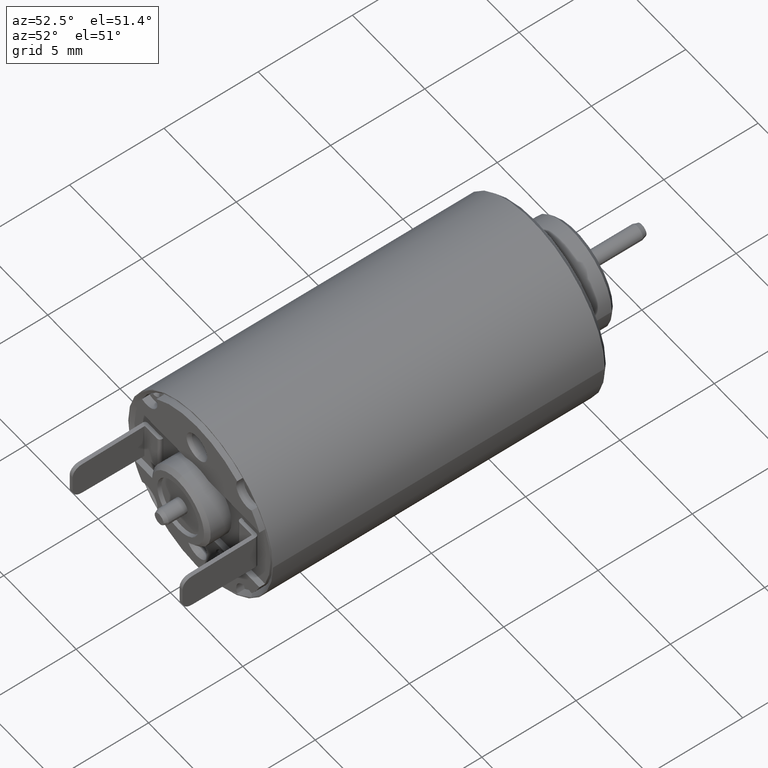
[diagram: clean part render]
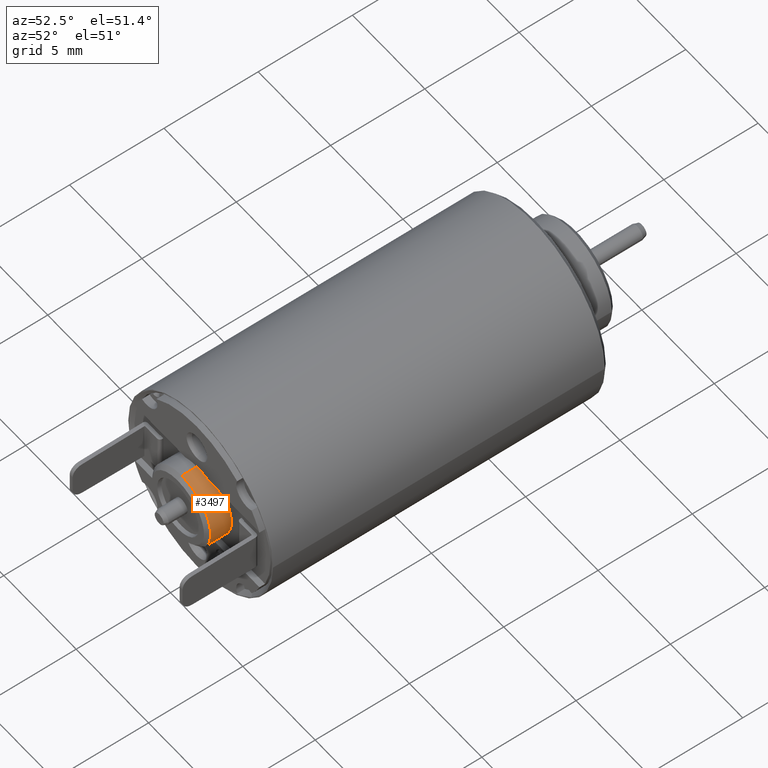
[diagram: same view with one face highlighted and labeled with its STEP entity id]
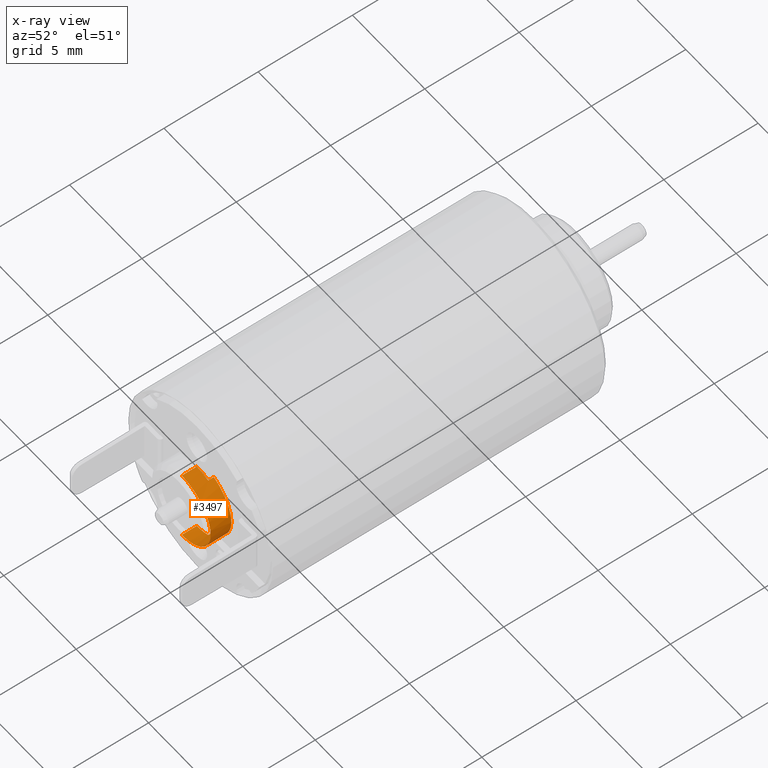
[diagram: x-ray of the same camera — body ghosted, the highlighted face saturated]
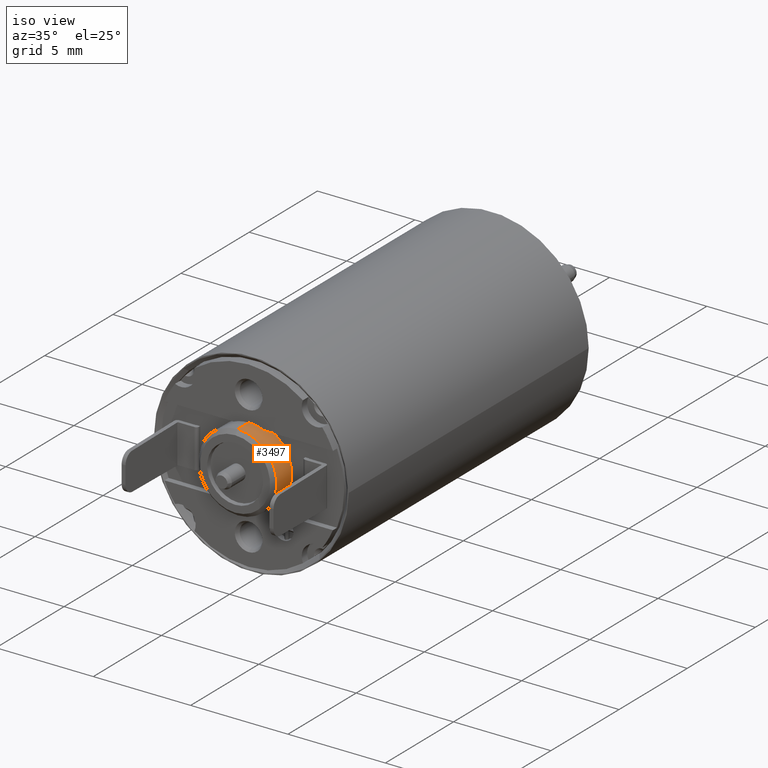
[diagram: same view with one face highlighted and labeled with its STEP entity id]
A machine part, auxiliary view. The second image highlights one B-rep face of the part: STEP entity #3497.
The next image is the same camera in x-ray: the body ghosted, the highlighted face saturated — about 0% of this face is hidden behind the body in this view.
A second angle (iso view) of the same face is appended — the face is thin or edge-on in the first view.
In plain terms, the highlighted cylindrical surface (partial cylindrical patch) has radius 2 mm, axis along (0, 1, 0).
Its self-contained STEP definition (entity closure, byte-faithful):
#761=CARTESIAN_POINT('',(0.E0,-2.36E1,0.E0));
#762=DIRECTION('',(0.E0,-1.E0,0.E0));
#763=DIRECTION('',(0.E0,0.E0,-1.E0));
#764=AXIS2_PLACEMENT_3D('',#761,#762,#763);
#778=CARTESIAN_POINT('',(0.E0,-2.36E1,0.E0));
#779=DIRECTION('',(0.E0,-1.E0,0.E0));
#780=DIRECTION('',(3.919183588453E-1,0.E0,9.2E-1));
#781=AXIS2_PLACEMENT_3D('',#778,#779,#780);
#887=CARTESIAN_POINT('',(0.E0,-2.33E1,0.E0));
#888=DIRECTION('',(0.E0,1.E0,0.E0));
#889=DIRECTION('',(3.919183588453E-1,0.E0,9.2E-1));
#890=AXIS2_PLACEMENT_3D('',#887,#888,#889);
#941=DIRECTION('',(0.E0,1.E0,0.E0));
#942=VECTOR('',#941,3.E-1);
#943=CARTESIAN_POINT('',(7.838367176906E-1,-2.36E1,1.84E0));
#944=LINE('',#943,#942);
#945=DIRECTION('',(0.E0,1.E0,0.E0));
#946=VECTOR('',#945,8.E-1);
#947=CARTESIAN_POINT('',(0.E0,-2.44E1,-2.E0));
#948=LINE('',#947,#946);
#949=CARTESIAN_POINT('',(0.E0,-2.44E1,0.E0));
#950=DIRECTION('',(0.E0,-1.E0,0.E0));
#951=DIRECTION('',(0.E0,0.E0,-1.E0));
#952=AXIS2_PLACEMENT_3D('',#949,#950,#951);
#954=DIRECTION('',(0.E0,1.E0,0.E0));
#955=VECTOR('',#954,8.E-1);
#956=CARTESIAN_POINT('',(0.E0,-2.44E1,2.E0));
#957=LINE('',#956,#955);
#958=DIRECTION('',(0.E0,1.E0,0.E0));
#959=VECTOR('',#958,3.E-1);
#960=CARTESIAN_POINT('',(7.838367176906E-1,-2.36E1,-1.84E0));
#961=LINE('',#960,#959);
#1858=CARTESIAN_POINT('',(0.E0,-2.44E1,-2.E0));
#1860=VERTEX_POINT('',#1858);
#1861=CARTESIAN_POINT('',(0.E0,-2.36E1,-2.E0));
#1862=VERTEX_POINT('',#1861);
#1868=CARTESIAN_POINT('',(0.E0,-2.44E1,2.E0));
#1870=VERTEX_POINT('',#1868);
#1871=CARTESIAN_POINT('',(0.E0,-2.36E1,2.E0));
#1872=VERTEX_POINT('',#1871);
#2009=CARTESIAN_POINT('',(7.838367176906E-1,-2.36E1,-1.84E0));
#2010=VERTEX_POINT('',#2009);
#2011=CARTESIAN_POINT('',(7.838367176906E-1,-2.36E1,1.84E0));
#2012=VERTEX_POINT('',#2011);
#2017=CARTESIAN_POINT('',(7.838367176906E-1,-2.33E1,1.84E0));
#2018=CARTESIAN_POINT('',(7.838367176906E-1,-2.33E1,-1.84E0));
#2019=VERTEX_POINT('',#2017);
#2020=VERTEX_POINT('',#2018);
#3479=CARTESIAN_POINT('',(0.E0,-2.4825E1,0.E0));
#3480=DIRECTION('',(0.E0,1.E0,0.E0));
#3481=DIRECTION('',(0.E0,0.E0,-1.E0));
#3482=AXIS2_PLACEMENT_3D('',#3479,#3480,#3481);
#3483=CYLINDRICAL_SURFACE('',#3482,2.E0);
#3484=ORIENTED_EDGE('',*,*,#3239,.F.);
#3486=ORIENTED_EDGE('',*,*,#3485,.T.);
#3487=ORIENTED_EDGE('',*,*,#3430,.T.);
#3489=ORIENTED_EDGE('',*,*,#3488,.F.);
#3490=ORIENTED_EDGE('',*,*,#3195,.F.);
#3491=ORIENTED_EDGE('',*,*,#3474,.F.);
#3493=ORIENTED_EDGE('',*,*,#3492,.T.);
#3494=ORIENTED_EDGE('',*,*,#3470,.T.);
#3495=EDGE_LOOP('',(#3484,#3486,#3487,#3489,#3490,#3491,#3493,#3494));
#3496=FACE_OUTER_BOUND('',#3495,.F.);
#3497=ADVANCED_FACE('',(#3496),#3483,.T.);
#765=CIRCLE('',#764,2.E0);
#782=CIRCLE('',#781,2.E0);
#891=CIRCLE('',#890,2.E0);
#953=CIRCLE('',#952,2.E0);
#3195=EDGE_CURVE('',#1862,#2010,#765,.T.);
#3239=EDGE_CURVE('',#2012,#1872,#782,.T.);
#3430=EDGE_CURVE('',#2019,#2020,#891,.T.);
#3470=EDGE_CURVE('',#1870,#1872,#957,.T.);
#3474=EDGE_CURVE('',#1860,#1862,#948,.T.);
#3485=EDGE_CURVE('',#2012,#2019,#944,.T.);
#3488=EDGE_CURVE('',#2010,#2020,#961,.T.);
#3492=EDGE_CURVE('',#1860,#1870,#953,.T.);